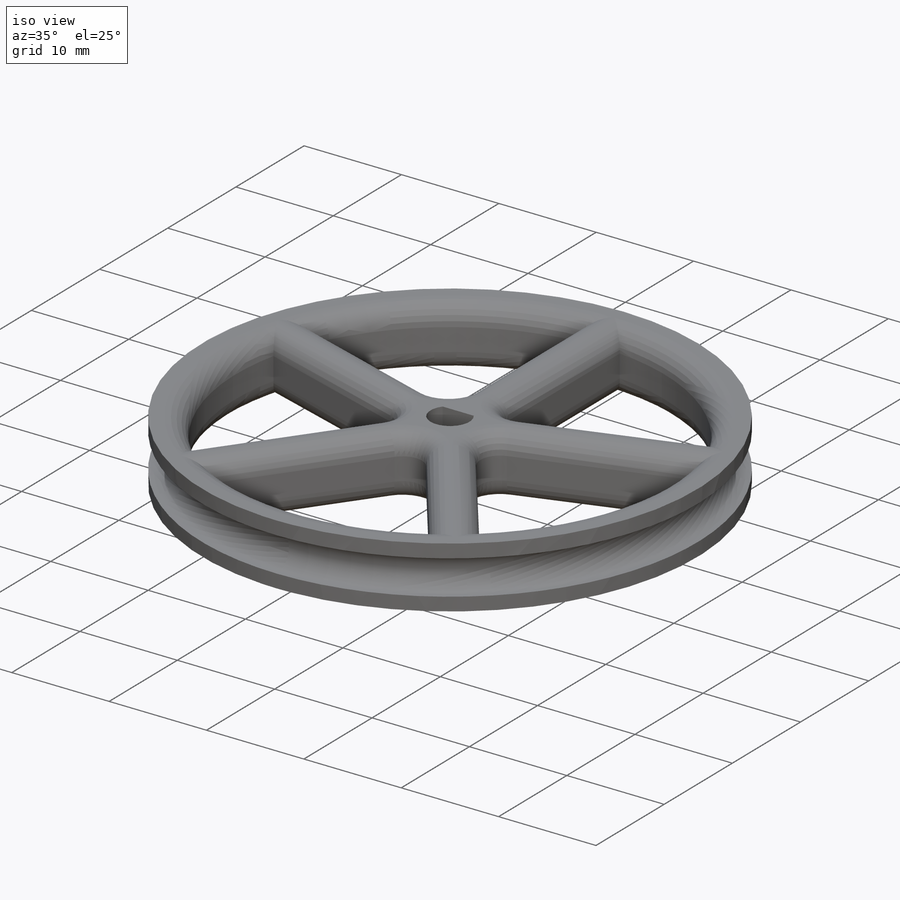
[diagram: iso view]
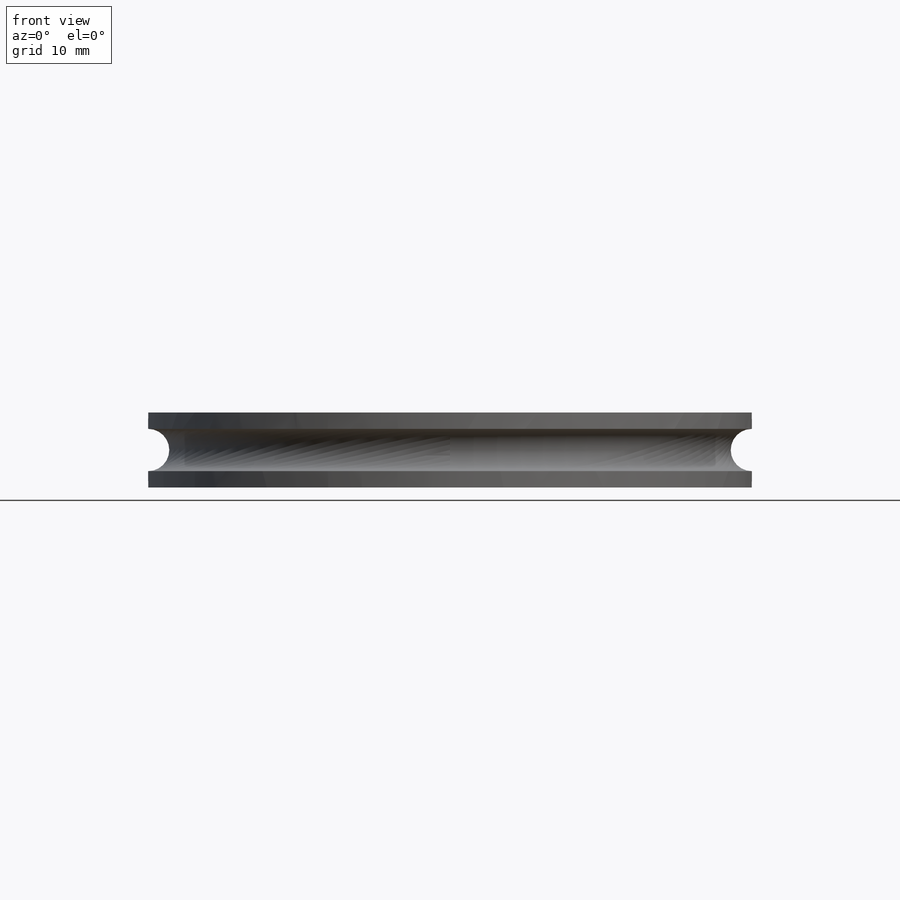
[diagram: front view]
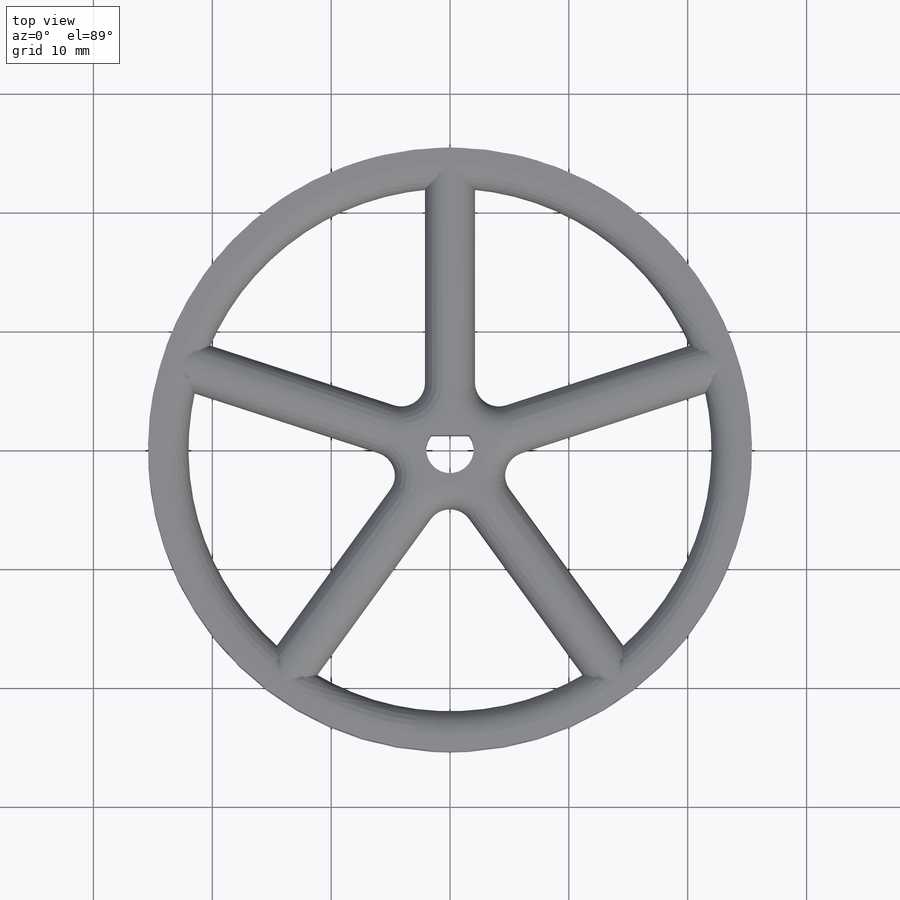
[diagram: top view]
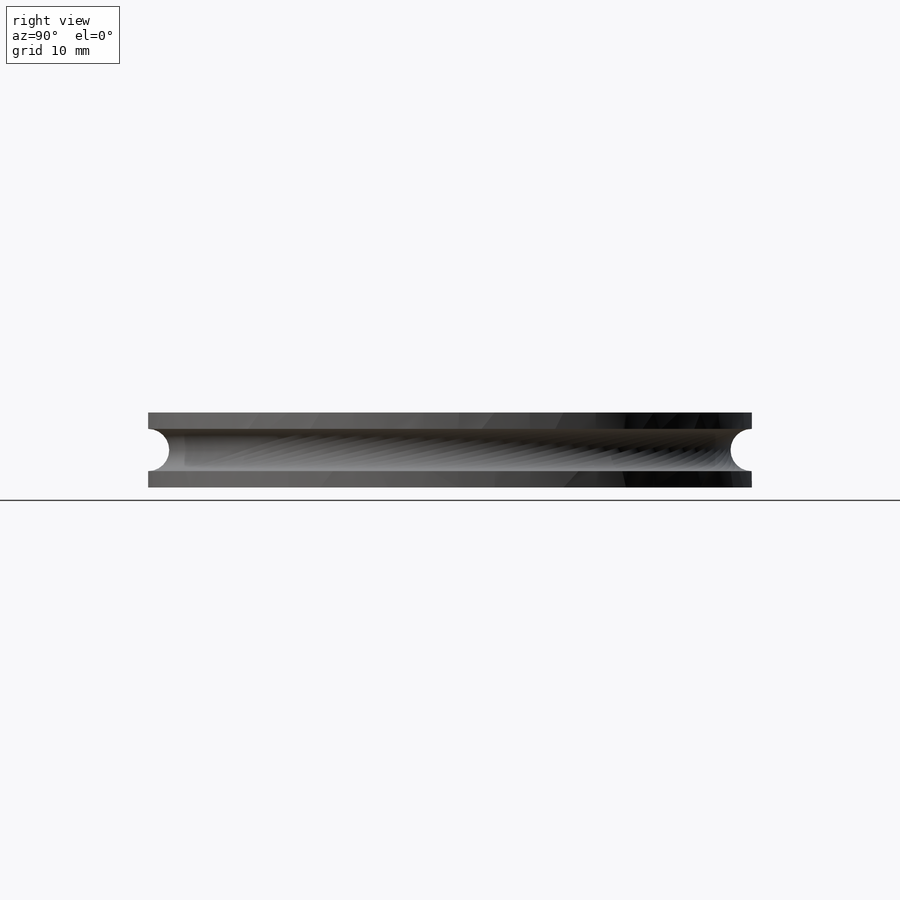
[diagram: right view]
SOLIDWORKS PART (.sldprt)
format: sldprt  version: not decoded by parser v0  size: 445,952 bytes
history: native  units: mm
features: plane x3, sketch x2, material x1, extrude x1, cut_revolve x1, fillet x1 + 3 further entries (+7 scaffold rows collapsed)
feature tree (19):
  scaffold x7  (default folders/planes/origin — collapsed)
  material  "Material <not specified>"
  "곡면 바디"
  "솔리드 바디"
  plane  "정면"
  plane  "윗면"
  plane  "우측면"
  "원점"
  sketch  "Sketch1"  dims[c1.D1=2.0mm c1.D2=2.0mm c2.D1=2.0mm c2.D2=2.0mm c3.D1=2.0mm c3.D2=2.0mm]
  extrude  "Boss-Extrude1"  Depth=6.3mm
  sketch  "Sketch3"  dims[D1=25.4mm]
  cut_revolve  "Cut-Revolve3"  Angle=360deg
  fillet  "Fillet1"  Radius=2mm
decode coverage: 5 of 5 modeling features carry decoded parameters; 3 rows unclassified (native names shown)
note: suppression state not decoded; provenance and decode notes live in map.json
